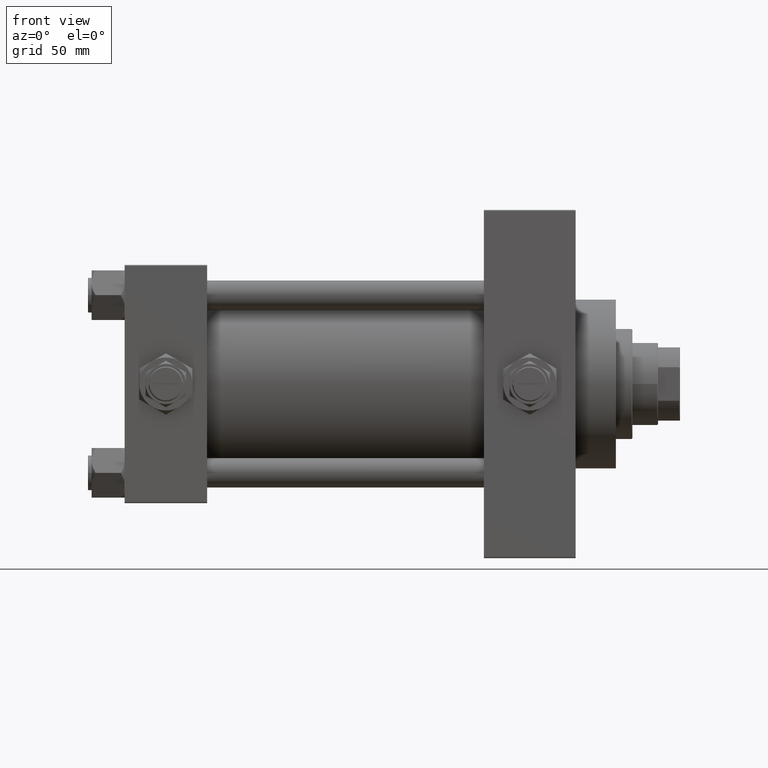
[diagram: clean part render]
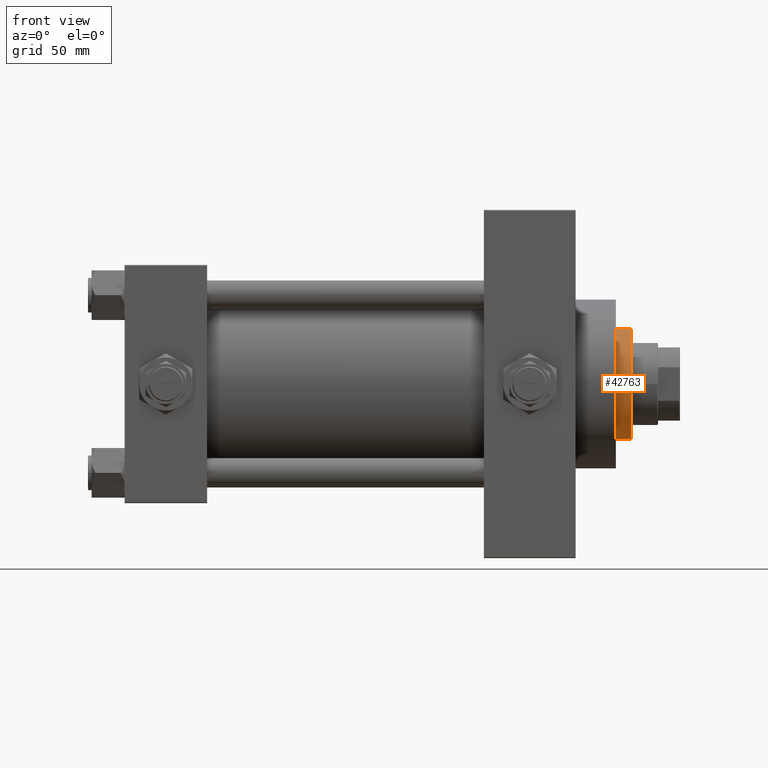
[diagram: same view with one face highlighted and labeled with its STEP entity id]
A machine part, front view. The second image highlights one B-rep face of the part: STEP entity #42763.
In plain terms, the highlighted cylindrical surface (partial cylindrical patch) has radius 30 mm, axis along (-1, 0, 0).
Its self-contained STEP definition (entity closure, byte-faithful):
#367 = CARTESIAN_POINT ( 'NONE',  ( 0.000000000000000000, 0.000000000000000000, 52.25999999999999801 ) ) ;
#393 = VERTEX_POINT ( 'NONE', #37037 ) ;
#2410 = CARTESIAN_POINT ( 'NONE',  ( 30.00000000000000000, 3.673940397442059178E-15, 52.25999999999999801 ) ) ;
#3153 = LINE ( 'NONE', #2410, #30433 ) ;
#5827 = EDGE_LOOP ( 'NONE', ( #14219, #42224, #30493, #46330 ) ) ;
#5910 = EDGE_CURVE ( 'NONE', #10945, #393, #31982, .T. ) ;
#8012 = CIRCLE ( 'NONE', #44966, 30.00000000000000000 ) ;
#8120 = CARTESIAN_POINT ( 'NONE',  ( -30.00000000000000000, 0.000000000000000000, 52.25999999999999801 ) ) ;
#10660 = CARTESIAN_POINT ( 'NONE',  ( 0.000000000000000000, 0.000000000000000000, 43.25999999999999801 ) ) ;
#10945 = VERTEX_POINT ( 'NONE', #35944 ) ;
#11022 = VERTEX_POINT ( 'NONE', #15743 ) ;
#13296 = VECTOR ( 'NONE', #23730, 1000.000000000000000 ) ;
#14219 = ORIENTED_EDGE ( 'NONE', *, *, #5910, .T. ) ;
#14954 = FACE_OUTER_BOUND ( 'NONE', #5827, .T. ) ;
#15743 = CARTESIAN_POINT ( 'NONE',  ( 30.00000000000000000, 3.673940397442059178E-15, 43.25999999999999801 ) ) ;
#18749 = VERTEX_POINT ( 'NONE', #22757 ) ;
#18912 = CARTESIAN_POINT ( 'NONE',  ( 0.000000000000000000, 0.000000000000000000, 51.75999999999999091 ) ) ;
#19733 = DIRECTION ( 'NONE',  ( -1.000000000000000000, 0.000000000000000000, 0.000000000000000000 ) ) ;
#20211 = EDGE_CURVE ( 'NONE', #11022, #18749, #8012, .T. ) ;
#20424 = LINE ( 'NONE', #8120, #13296 ) ;
#22757 = CARTESIAN_POINT ( 'NONE',  ( -30.00000000000000000, 0.000000000000000000, 43.25999999999999801 ) ) ;
#23462 = DIRECTION ( 'NONE',  ( 1.000000000000000000, 0.000000000000000000, 0.000000000000000000 ) ) ;
#23730 = DIRECTION ( 'NONE',  ( -0.000000000000000000, -0.000000000000000000, -1.000000000000000000 ) ) ;
#30324 = CYLINDRICAL_SURFACE ( 'NONE', #44105, 30.00000000000000000 ) ;
#30433 = VECTOR ( 'NONE', #45179, 1000.000000000000000 ) ;
#30493 = ORIENTED_EDGE ( 'NONE', *, *, #20211, .T. ) ;
#31070 = DIRECTION ( 'NONE',  ( -0.000000000000000000, -0.000000000000000000, -1.000000000000000000 ) ) ;
#31982 = CIRCLE ( 'NONE', #46423, 30.00000000000000000 ) ;
#34328 = DIRECTION ( 'NONE',  ( 1.000000000000000000, 0.000000000000000000, 0.000000000000000000 ) ) ;
#34777 = DIRECTION ( 'NONE',  ( 0.000000000000000000, 0.000000000000000000, -1.000000000000000000 ) ) ;
#35944 = CARTESIAN_POINT ( 'NONE',  ( -30.00000000000000000, 0.000000000000000000, 51.75999999999999091 ) ) ;
#37037 = CARTESIAN_POINT ( 'NONE',  ( 30.00000000000000000, 3.673940397442059178E-15, 51.75999999999999091 ) ) ;
#37107 = EDGE_CURVE ( 'NONE', #10945, #18749, #20424, .T. ) ;
#41242 = EDGE_CURVE ( 'NONE', #393, #11022, #3153, .T. ) ;
#42224 = ORIENTED_EDGE ( 'NONE', *, *, #41242, .T. ) ;
#42763 = ADVANCED_FACE ( 'NONE', ( #14954 ), #30324, .T. ) ;
#44105 = AXIS2_PLACEMENT_3D ( 'NONE', #367, #31070, #19733 ) ;
#44966 = AXIS2_PLACEMENT_3D ( 'NONE', #10660, #45405, #34328 ) ;
#45179 = DIRECTION ( 'NONE',  ( -0.000000000000000000, -0.000000000000000000, -1.000000000000000000 ) ) ;
#45405 = DIRECTION ( 'NONE',  ( 0.000000000000000000, 0.000000000000000000, 1.000000000000000000 ) ) ;
#46330 = ORIENTED_EDGE ( 'NONE', *, *, #37107, .F. ) ;
#46423 = AXIS2_PLACEMENT_3D ( 'NONE', #18912, #34777, #23462 ) ;